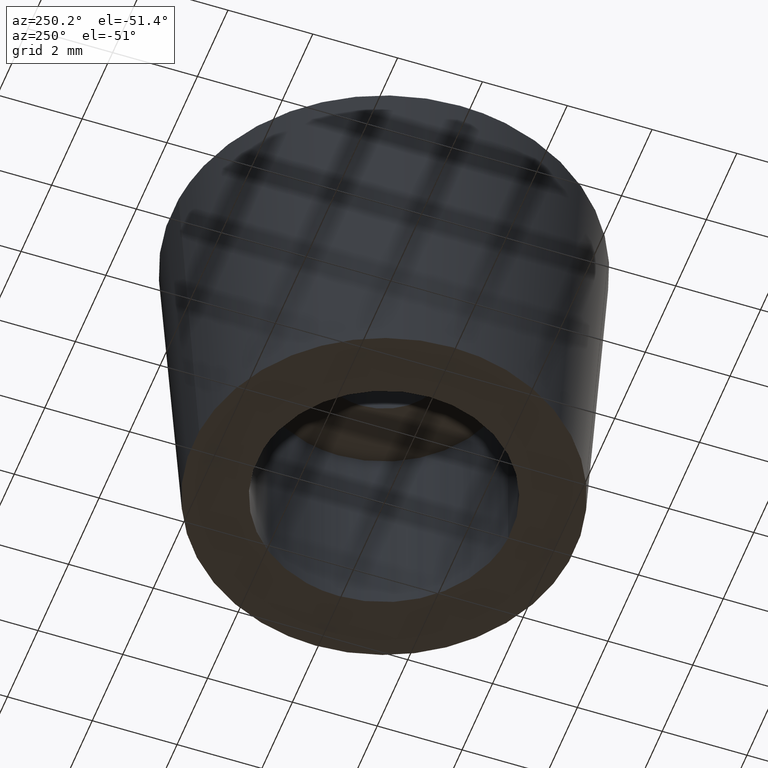
[diagram: clean part render]
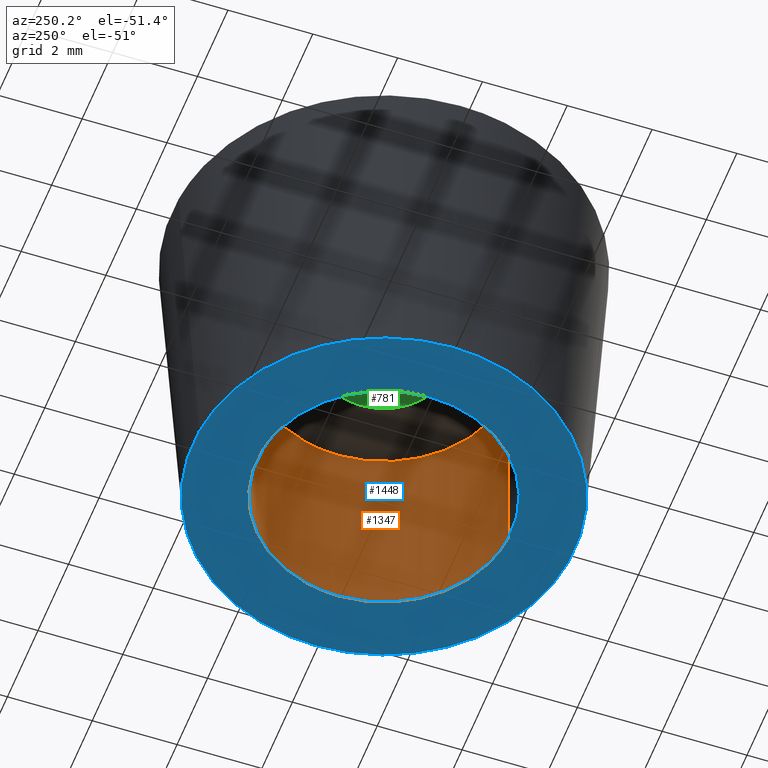
[diagram: same view with three faces highlighted in distinct colors, each labeled with its STEP entity id]
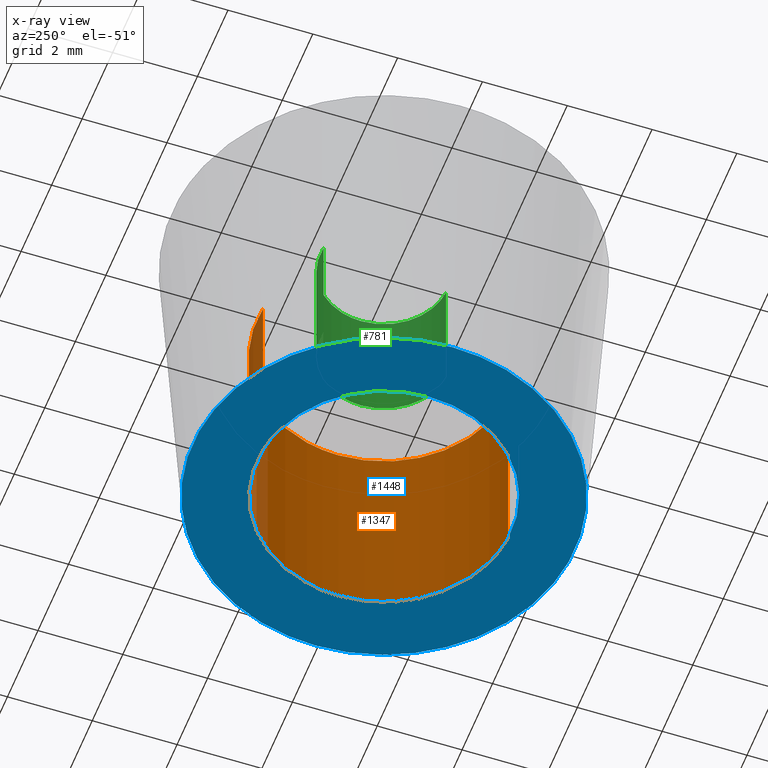
[diagram: x-ray of the same camera — body ghosted, the three highlighted faces saturated]
A machine part, auxiliary view with three faces highlighted in distinct colors.
The next image is the same camera in x-ray (body ghosted, the three faces saturated) — at least one of them is partly hidden behind the body in this view.
Their STEP definitions:

[orange] entity #1347 — the highlighted face is a freeform B-spline surface patch.
#1245=CARTESIAN_POINT('',(-0.354102703970275,2.979028579091000,5.125000000000002));
#1246=CARTESIAN_POINT('',(-0.268844185913933,2.989162846345817,5.125000000000001));
#1247=CARTESIAN_POINT('',(-0.183145618604571,2.994404395265600,5.125000000000001));
#1248=CARTESIAN_POINT('',(2.811258776661029,3.177550013870171,5.125000000000001));
#1249=CARTESIAN_POINT('',(2.994404395265600,0.183145618604571,5.125000000000001));
#1250=CARTESIAN_POINT('',(3.177550013870171,-2.811258776661029,5.125000000000001));
#1251=CARTESIAN_POINT('',(0.183145618604571,-2.994404395265600,5.125000000000001));
#1252=CARTESIAN_POINT('',(-0.354102703970275,2.979028579091000,-0.128125000000000));
#1253=CARTESIAN_POINT('',(-0.268844185913933,2.989162846345817,-0.128125000000000));
#1254=CARTESIAN_POINT('',(-0.183145618604571,2.994404395265600,-0.128125000000000));
#1255=CARTESIAN_POINT('',(2.811258776661029,3.177550013870171,-0.128125000000000));
#1256=CARTESIAN_POINT('',(2.994404395265600,0.183145618604571,-0.128125000000000));
#1257=CARTESIAN_POINT('',(3.177550013870171,-2.811258776661029,-0.128125000000000));
#1258=CARTESIAN_POINT('',(0.183145618604571,-2.994404395265600,-0.128125000000000));
#1266=(BOUNDED_SURFACE()B_SPLINE_SURFACE(2,1,((#1245,#1252),(#1246,#1253),(#1247,#1254),(#1248,#1255),(#1249,#1256),(#1250,#1257),(#1251,#1258)),.UNSPECIFIED.,.F.,.F.,.U.)B_SPLINE_SURFACE_WITH_KNOTS((3,2,2,3),(2,2),(0.0,0.198822509939086,5.169385258416225,10.139948006893370),(0.0,5.253125000000002),.UNSPECIFIED.)GEOMETRIC_REPRESENTATION_ITEM()RATIONAL_B_SPLINE_SURFACE(((0.977505800795127,0.977505800795127),(0.988284271247462,0.988284271247462),(1.0,1.0),(0.707106781186548,0.707106781186548),(1.0,1.0),(0.707106781186548,0.707106781186548),(1.0,1.0)))REPRESENTATION_ITEM('')SURFACE());
#1267=CARTESIAN_POINT('',(-0.354099495451284,2.979028960468613,-5.969898E-015));
#1268=VERTEX_POINT('',#1267);
#1269=CARTESIAN_POINT('',(3.0,0.0,0.0));
#1270=VERTEX_POINT('',#1269);
#1271=CARTESIAN_POINT('',(-0.354099495451284,2.979028960468613,-5.969898E-015));
#1272=CARTESIAN_POINT('',(-0.177670737736467,3.0,0.0));
#1273=CARTESIAN_POINT('',(0.0,3.0,0.0));
#1274=CARTESIAN_POINT('',(3.0,3.0,0.0));
#1275=CARTESIAN_POINT('',(3.0,0.0,0.0));
#1283=(BOUNDED_CURVE()B_SPLINE_CURVE(2,(#1271,#1272,#1273,#1274,#1275),.UNSPECIFIED.,.F.,.U.)B_SPLINE_CURVE_WITH_KNOTS((3,2,3),(0.229562655538124,0.250000000000000,0.500000000000000),.UNSPECIFIED.)CURVE()GEOMETRIC_REPRESENTATION_ITEM()RATIONAL_B_SPLINE_CURVE((0.956027110959706,0.976056161586248,1.0,0.707106781186548,1.0))REPRESENTATION_ITEM(''));
#1284=EDGE_CURVE('',#1268,#1270,#1283,.T.);
#1285=ORIENTED_EDGE('',*,*,#1284,.T.);
#1286=CARTESIAN_POINT('',(0.183142456747576,-2.994404588649708,-6.543377E-015));
#1287=VERTEX_POINT('',#1286);
#1288=CARTESIAN_POINT('',(3.0,0.0,0.0));
#1289=CARTESIAN_POINT('',(2.999999999999999,-2.822121186223181,0.0));
#1290=CARTESIAN_POINT('',(0.183142456747576,-2.994404588649708,-6.543377E-015));
#1298=(BOUNDED_CURVE()B_SPLINE_CURVE(2,(#1288,#1289,#1290),.UNSPECIFIED.,.F.,.U.)B_SPLINE_CURVE_WITH_KNOTS((3,3),(0.500000000000000,0.739333144437917),.UNSPECIFIED.)CURVE()GEOMETRIC_REPRESENTATION_ITEM()RATIONAL_B_SPLINE_CURVE((1.0,0.719603779827335,0.976072432154112))REPRESENTATION_ITEM(''));
#1299=EDGE_CURVE('',#1270,#1287,#1298,.T.);
#1300=ORIENTED_EDGE('',*,*,#1299,.T.);
#1301=CARTESIAN_POINT('',(0.183142495778265,-2.994404586262570,4.999999999999999));
#1302=VERTEX_POINT('',#1301);
#1303=CARTESIAN_POINT('',(0.183142495778265,-2.994404586262570,4.999999999999999));
#1304=CARTESIAN_POINT('',(0.183142456747576,-2.994404588649708,-6.543377E-015));
#1305=QUASI_UNIFORM_CURVE('',1,(#1303,#1304),.UNSPECIFIED.,.F.,.U.);
#1306=EDGE_CURVE('',#1302,#1287,#1305,.T.);
#1307=ORIENTED_EDGE('',*,*,#1306,.F.);
#1308=CARTESIAN_POINT('',(3.0,0.0,5.0));
#1309=VERTEX_POINT('',#1308);
#1310=CARTESIAN_POINT('',(3.0,0.0,5.0));
#1311=CARTESIAN_POINT('',(3.000000000000001,-2.822121149369394,5.0));
#1312=CARTESIAN_POINT('',(0.183142495778265,-2.994404586262570,4.999999999999999));
#1320=(BOUNDED_CURVE()B_SPLINE_CURVE(2,(#1310,#1311,#1312),.UNSPECIFIED.,.F.,.U.)B_SPLINE_CURVE_WITH_KNOTS((3,3),(0.500000000000000,0.739333142188848),.UNSPECIFIED.)CURVE()GEOMETRIC_REPRESENTATION_ITEM()RATIONAL_B_SPLINE_CURVE((1.0,0.719603782462283,0.976072427333922))REPRESENTATION_ITEM(''));
#1321=EDGE_CURVE('',#1309,#1302,#1320,.T.);
#1322=ORIENTED_EDGE('',*,*,#1321,.F.);
#1323=CARTESIAN_POINT('',(-0.354099535051968,2.979028955761558,5.0));
#1324=VERTEX_POINT('',#1323);
#1325=CARTESIAN_POINT('',(-0.354099535051968,2.979028955761558,5.0));
#1326=CARTESIAN_POINT('',(-0.177670757746130,3.0,5.0));
#1327=CARTESIAN_POINT('',(0.0,3.0,5.0));
#1328=CARTESIAN_POINT('',(3.0,3.0,5.000000000000001));
#1329=CARTESIAN_POINT('',(3.0,0.0,5.0));
#1337=(BOUNDED_CURVE()B_SPLINE_CURVE(2,(#1325,#1326,#1327,#1328,#1329),.UNSPECIFIED.,.F.,.U.)B_SPLINE_CURVE_WITH_KNOTS((3,2,3),(0.229562653291538,0.250000000000000,0.500000000000000),.UNSPECIFIED.)CURVE()GEOMETRIC_REPRESENTATION_ITEM()RATIONAL_B_SPLINE_CURVE((0.956027106556297,0.976056158954208,1.0,0.707106781186548,1.0))REPRESENTATION_ITEM(''));
#1338=EDGE_CURVE('',#1324,#1309,#1337,.T.);
#1339=ORIENTED_EDGE('',*,*,#1338,.F.);
#1340=CARTESIAN_POINT('',(-0.354099535051968,2.979028955761558,5.0));
#1341=CARTESIAN_POINT('',(-0.354099495451284,2.979028960468613,-5.969898E-015));
#1342=QUASI_UNIFORM_CURVE('',1,(#1340,#1341),.UNSPECIFIED.,.F.,.U.);
#1343=EDGE_CURVE('',#1324,#1268,#1342,.T.);
#1344=ORIENTED_EDGE('',*,*,#1343,.T.);
#1345=EDGE_LOOP('',(#1285,#1300,#1307,#1322,#1339,#1344));
#1346=FACE_OUTER_BOUND('',#1345,.T.);
#1347=ADVANCED_FACE('',(#1346),#1266,.F.);

[blue] entity #1448 — the highlighted face is a freeform B-spline surface patch.
#515=CARTESIAN_POINT('',(-4.500000000000000,0.0,0.0));
#516=VERTEX_POINT('',#515);
#517=CARTESIAN_POINT('',(-0.353062357360180,4.486128245514117,-0.000000598405103));
#518=VERTEX_POINT('',#517);
#519=CARTESIAN_POINT('',(-4.500000000000000,0.0,0.0));
#520=CARTESIAN_POINT('',(-4.500000000000000,4.159760533424683,0.0));
#521=CARTESIAN_POINT('',(-0.353062357360180,4.486128245514117,-0.000000598405103));
#529=(BOUNDED_CURVE()B_SPLINE_CURVE(2,(#519,#520,#521),.UNSPECIFIED.,.F.,.U.)B_SPLINE_CURVE_WITH_KNOTS((3,3),(0.0,0.236331437068440),.UNSPECIFIED.)CURVE()GEOMETRIC_REPRESENTATION_ITEM()RATIONAL_B_SPLINE_CURVE((1.0,0.723120498760862,0.969723640902832))REPRESENTATION_ITEM(''));
#530=EDGE_CURVE('',#516,#518,#529,.T.);
#532=CARTESIAN_POINT('',(0.353062357360179,-4.486128245514117,-0.000000598405103));
#533=VERTEX_POINT('',#532);
#534=CARTESIAN_POINT('',(0.353062357360179,-4.486128245514117,-0.000000598405103));
#535=CARTESIAN_POINT('',(0.176803688009538,-4.500000000000000,0.0));
#536=CARTESIAN_POINT('',(0.0,-4.500000000000000,0.0));
#537=CARTESIAN_POINT('',(-4.500000000000000,-4.500000000000000,0.0));
#538=CARTESIAN_POINT('',(-4.500000000000000,0.0,0.0));
#546=(BOUNDED_CURVE()B_SPLINE_CURVE(2,(#534,#535,#536,#537,#538),.UNSPECIFIED.,.F.,.U.)B_SPLINE_CURVE_WITH_KNOTS((3,2,3),(0.736331437068440,0.750000000000000,1.0),.UNSPECIFIED.)CURVE()GEOMETRIC_REPRESENTATION_ITEM()RATIONAL_B_SPLINE_CURVE((0.969723640902832,0.983986282425685,1.0,0.707106781186547,1.0))REPRESENTATION_ITEM(''));
#547=EDGE_CURVE('',#533,#516,#546,.T.);
#614=CARTESIAN_POINT('',(4.500000000000000,0.0,0.0));
#615=VERTEX_POINT('',#614);
#616=CARTESIAN_POINT('',(-0.353062357360180,4.486128245514117,-0.000000598405103));
#617=CARTESIAN_POINT('',(-0.176803688009538,4.500000000000000,0.0));
#618=CARTESIAN_POINT('',(0.0,4.500000000000000,0.0));
#619=CARTESIAN_POINT('',(4.500000000000000,4.500000000000000,0.0));
#620=CARTESIAN_POINT('',(4.500000000000000,0.0,0.0));
#628=(BOUNDED_CURVE()B_SPLINE_CURVE(2,(#616,#617,#618,#619,#620),.UNSPECIFIED.,.F.,.U.)B_SPLINE_CURVE_WITH_KNOTS((3,2,3),(0.236331437068440,0.250000000000000,0.500000000000000),.UNSPECIFIED.)CURVE()GEOMETRIC_REPRESENTATION_ITEM()RATIONAL_B_SPLINE_CURVE((0.969723640902832,0.983986282425685,1.0,0.707106781186547,1.0))REPRESENTATION_ITEM(''));
#629=EDGE_CURVE('',#518,#615,#628,.T.);
#663=CARTESIAN_POINT('',(4.500000000000000,0.0,0.0));
#664=CARTESIAN_POINT('',(4.500000000000000,-4.159760533424683,0.0));
#665=CARTESIAN_POINT('',(0.353062357360179,-4.486128245514117,-0.000000598405103));
#673=(BOUNDED_CURVE()B_SPLINE_CURVE(2,(#663,#664,#665),.UNSPECIFIED.,.F.,.U.)B_SPLINE_CURVE_WITH_KNOTS((3,3),(0.500000000000000,0.736331437068440),.UNSPECIFIED.)CURVE()GEOMETRIC_REPRESENTATION_ITEM()RATIONAL_B_SPLINE_CURVE((1.0,0.723120498760862,0.969723640902832))REPRESENTATION_ITEM(''));
#674=EDGE_CURVE('',#615,#533,#673,.T.);
#1267=CARTESIAN_POINT('',(-0.354099495451284,2.979028960468613,-5.969898E-015));
#1268=VERTEX_POINT('',#1267);
#1269=CARTESIAN_POINT('',(3.0,0.0,0.0));
#1270=VERTEX_POINT('',#1269);
#1271=CARTESIAN_POINT('',(-0.354099495451284,2.979028960468613,-5.969898E-015));
#1272=CARTESIAN_POINT('',(-0.177670737736467,3.0,0.0));
#1273=CARTESIAN_POINT('',(0.0,3.0,0.0));
#1274=CARTESIAN_POINT('',(3.0,3.0,0.0));
#1275=CARTESIAN_POINT('',(3.0,0.0,0.0));
#1283=(BOUNDED_CURVE()B_SPLINE_CURVE(2,(#1271,#1272,#1273,#1274,#1275),.UNSPECIFIED.,.F.,.U.)B_SPLINE_CURVE_WITH_KNOTS((3,2,3),(0.229562655538124,0.250000000000000,0.500000000000000),.UNSPECIFIED.)CURVE()GEOMETRIC_REPRESENTATION_ITEM()RATIONAL_B_SPLINE_CURVE((0.956027110959706,0.976056161586248,1.0,0.707106781186548,1.0))REPRESENTATION_ITEM(''));
#1284=EDGE_CURVE('',#1268,#1270,#1283,.T.);
#1286=CARTESIAN_POINT('',(0.183142456747576,-2.994404588649708,-6.543377E-015));
#1287=VERTEX_POINT('',#1286);
#1288=CARTESIAN_POINT('',(3.0,0.0,0.0));
#1289=CARTESIAN_POINT('',(2.999999999999999,-2.822121186223181,0.0));
#1290=CARTESIAN_POINT('',(0.183142456747576,-2.994404588649708,-6.543377E-015));
#1298=(BOUNDED_CURVE()B_SPLINE_CURVE(2,(#1288,#1289,#1290),.UNSPECIFIED.,.F.,.U.)B_SPLINE_CURVE_WITH_KNOTS((3,3),(0.500000000000000,0.739333144437917),.UNSPECIFIED.)CURVE()GEOMETRIC_REPRESENTATION_ITEM()RATIONAL_B_SPLINE_CURVE((1.0,0.719603779827335,0.976072432154112))REPRESENTATION_ITEM(''));
#1299=EDGE_CURVE('',#1270,#1287,#1298,.T.);
#1366=CARTESIAN_POINT('',(-3.0,0.0,0.0));
#1367=VERTEX_POINT('',#1366);
#1368=CARTESIAN_POINT('',(-3.0,0.0,0.0));
#1369=CARTESIAN_POINT('',(-3.000000000000000,2.664526467843501,0.0));
#1370=CARTESIAN_POINT('',(-0.354099495451284,2.979028960468613,-5.969898E-015));
#1378=(BOUNDED_CURVE()B_SPLINE_CURVE(2,(#1368,#1369,#1370),.UNSPECIFIED.,.F.,.U.)B_SPLINE_CURVE_WITH_KNOTS((3,3),(0.0,0.229562655538124),.UNSPECIFIED.)CURVE()GEOMETRIC_REPRESENTATION_ITEM()RATIONAL_B_SPLINE_CURVE((1.0,0.731050619600300,0.956027110959706))REPRESENTATION_ITEM(''));
#1379=EDGE_CURVE('',#1367,#1268,#1378,.T.);
#1413=CARTESIAN_POINT('',(0.183142456747576,-2.994404588649708,-6.543377E-015));
#1414=CARTESIAN_POINT('',(0.091656704534628,-3.000000000000001,0.0));
#1415=CARTESIAN_POINT('',(0.0,-3.0,0.0));
#1416=CARTESIAN_POINT('',(-3.0,-3.0,0.0));
#1417=CARTESIAN_POINT('',(-3.0,0.0,0.0));
#1425=(BOUNDED_CURVE()B_SPLINE_CURVE(2,(#1413,#1414,#1415,#1416,#1417),.UNSPECIFIED.,.F.,.U.)B_SPLINE_CURVE_WITH_KNOTS((3,2,3),(0.739333144437917,0.750000000000000,1.0),.UNSPECIFIED.)CURVE()GEOMETRIC_REPRESENTATION_ITEM()RATIONAL_B_SPLINE_CURVE((0.976072432154112,0.987503001359213,1.0,0.707106781186548,1.0))REPRESENTATION_ITEM(''));
#1426=EDGE_CURVE('',#1287,#1367,#1425,.T.);
#1431=CARTESIAN_POINT('',(-4.949549982556253,-4.948176387270838,0.0));
#1432=CARTESIAN_POINT('',(4.949550223955065,-4.948176387270838,0.0));
#1433=CARTESIAN_POINT('',(-4.949549982556253,4.948176628669650,0.0));
#1434=CARTESIAN_POINT('',(4.949550223955065,4.948176628669650,0.0));
#1435=B_SPLINE_SURFACE_WITH_KNOTS('',1,1,((#1431,#1433),(#1432,#1434)),.UNSPECIFIED.,.F.,.F.,.U.,(2,2),(2,2),(0.0,9.899100206511317),(0.0,9.896353015940488),.UNSPECIFIED.);
#1436=ORIENTED_EDGE('',*,*,#530,.T.);
#1437=ORIENTED_EDGE('',*,*,#629,.T.);
#1438=ORIENTED_EDGE('',*,*,#674,.T.);
#1439=ORIENTED_EDGE('',*,*,#547,.T.);
#1440=EDGE_LOOP('',(#1436,#1437,#1438,#1439));
#1441=FACE_OUTER_BOUND('',#1440,.T.);
#1442=ORIENTED_EDGE('',*,*,#1299,.F.);
#1443=ORIENTED_EDGE('',*,*,#1284,.F.);
#1444=ORIENTED_EDGE('',*,*,#1379,.F.);
#1445=ORIENTED_EDGE('',*,*,#1426,.F.);
#1446=EDGE_LOOP('',(#1442,#1443,#1444,#1445));
#1447=FACE_BOUND('',#1446,.T.);
#1448=ADVANCED_FACE('',(#1441,#1447),#1435,.F.);

[green] entity #781 — the highlighted face is a freeform B-spline surface patch.
#679=CARTESIAN_POINT('',(-0.177051351985138,1.489514289545500,8.074999999999999));
#680=CARTESIAN_POINT('',(-0.134422092956966,1.494581423172908,8.074999999999999));
#681=CARTESIAN_POINT('',(-0.091572809302285,1.497202197632800,8.074999999999999));
#682=CARTESIAN_POINT('',(1.405629388330515,1.588775006935085,8.075000000000001));
#683=CARTESIAN_POINT('',(1.497202197632800,0.091572809302285,8.074999999999999));
#684=CARTESIAN_POINT('',(1.588775006935085,-1.405629388330515,8.075000000000001));
#685=CARTESIAN_POINT('',(0.091572809302285,-1.497202197632800,8.074999999999999));
#686=CARTESIAN_POINT('',(-0.177051351985138,1.489514289545500,4.923125000000000));
#687=CARTESIAN_POINT('',(-0.134422092956966,1.494581423172908,4.923124999999999));
#688=CARTESIAN_POINT('',(-0.091572809302285,1.497202197632800,4.923124999999999));
#689=CARTESIAN_POINT('',(1.405629388330515,1.588775006935085,4.923124999999998));
#690=CARTESIAN_POINT('',(1.497202197632800,0.091572809302285,4.923124999999999));
#691=CARTESIAN_POINT('',(1.588775006935085,-1.405629388330515,4.923124999999998));
#692=CARTESIAN_POINT('',(0.091572809302285,-1.497202197632800,4.923124999999999));
#700=(BOUNDED_SURFACE()B_SPLINE_SURFACE(2,1,((#679,#686),(#680,#687),(#681,#688),(#682,#689),(#683,#690),(#684,#691),(#685,#692)),.UNSPECIFIED.,.F.,.F.,.U.)B_SPLINE_SURFACE_WITH_KNOTS((3,2,2,3),(2,2),(3.078760800517997,3.141592653589793,4.712388980384690,6.283185307179586),(0.0,3.151875000000002),.UNSPECIFIED.)GEOMETRIC_REPRESENTATION_ITEM()RATIONAL_B_SPLINE_SURFACE(((0.977505800795127,0.977505800795127),(0.988284271247462,0.988284271247462),(1.0,1.0),(0.707106781186548,0.707106781186548),(1.0,1.0),(0.707106781186548,0.707106781186548),(1.0,1.0)))REPRESENTATION_ITEM('')SURFACE());
#701=CARTESIAN_POINT('',(-0.177049095385547,1.489514557773100,8.000000000000014));
#702=VERTEX_POINT('',#701);
#703=CARTESIAN_POINT('',(1.500000000000000,0.0,8.0));
#704=VERTEX_POINT('',#703);
#705=CARTESIAN_POINT('',(-0.177049095385547,1.489514557773101,8.000000000000014));
#706=CARTESIAN_POINT('',(-0.088835039250085,1.500000000000000,8.0));
#707=CARTESIAN_POINT('',(0.0,1.500000000000000,8.0));
#708=CARTESIAN_POINT('',(1.500000000000000,1.500000000000000,8.0));
#709=CARTESIAN_POINT('',(1.500000000000000,0.0,8.0));
#717=(BOUNDED_CURVE()B_SPLINE_CURVE(2,(#705,#706,#707,#708,#709),.UNSPECIFIED.,.F.,.U.)B_SPLINE_CURVE_WITH_KNOTS((3,2,3),(0.229562729553938,0.250000000000000,0.500000000000000),.UNSPECIFIED.)CURVE()GEOMETRIC_REPRESENTATION_ITEM()RATIONAL_B_SPLINE_CURVE((0.956027256034033,0.976056248301167,1.0,0.707106781186548,1.0))REPRESENTATION_ITEM(''));
#718=EDGE_CURVE('',#702,#704,#717,.T.);
#719=ORIENTED_EDGE('',*,*,#718,.F.);
#720=CARTESIAN_POINT('',(-0.177049122601509,1.489514554538154,5.0));
#721=VERTEX_POINT('',#720);
#722=CARTESIAN_POINT('',(-0.177049095385547,1.489514557773100,8.000000000000014));
#723=CARTESIAN_POINT('',(-0.177049122601509,1.489514554538154,5.0));
#724=QUASI_UNIFORM_CURVE('',1,(#722,#723),.UNSPECIFIED.,.F.,.U.);
#725=EDGE_CURVE('',#702,#721,#724,.T.);
#726=ORIENTED_EDGE('',*,*,#725,.T.);
#727=CARTESIAN_POINT('',(1.500000000000000,0.0,5.0));
#728=VERTEX_POINT('',#727);
#729=CARTESIAN_POINT('',(-0.177049122601509,1.489514554538154,5.0));
#730=CARTESIAN_POINT('',(-0.088835053001922,1.500000000000000,5.0));
#731=CARTESIAN_POINT('',(0.0,1.500000000000000,5.0));
#732=CARTESIAN_POINT('',(1.500000000000000,1.500000000000000,5.000000000000001));
#733=CARTESIAN_POINT('',(1.500000000000000,0.0,5.0));
#741=(BOUNDED_CURVE()B_SPLINE_CURVE(2,(#729,#730,#731,#732,#733),.UNSPECIFIED.,.F.,.U.)B_SPLINE_CURVE_WITH_KNOTS((3,2,3),(0.229562726465960,0.250000000000000,0.500000000000000),.UNSPECIFIED.)CURVE()GEOMETRIC_REPRESENTATION_ITEM()RATIONAL_B_SPLINE_CURVE((0.956027249981456,0.976056244683376,1.0,0.707106781186548,1.0))REPRESENTATION_ITEM(''));
#742=EDGE_CURVE('',#721,#728,#741,.T.);
#743=ORIENTED_EDGE('',*,*,#742,.T.);
#744=CARTESIAN_POINT('',(0.091570935345200,-1.497202312246571,5.0));
#745=VERTEX_POINT('',#744);
#746=CARTESIAN_POINT('',(1.500000000000000,0.0,5.0));
#747=CARTESIAN_POINT('',(1.500000000000000,-1.411060869796808,4.999999999999999));
#748=CARTESIAN_POINT('',(0.091570935345200,-1.497202312246571,5.0));
#756=(BOUNDED_CURVE()B_SPLINE_CURVE(2,(#746,#747,#748),.UNSPECIFIED.,.F.,.U.)B_SPLINE_CURVE_WITH_KNOTS((3,3),(0.500000000000000,0.739333178208343),.UNSPECIFIED.)CURVE()GEOMETRIC_REPRESENTATION_ITEM()RATIONAL_B_SPLINE_CURVE((1.0,0.719603740262819,0.976072504530692))REPRESENTATION_ITEM(''));
#757=EDGE_CURVE('',#728,#745,#756,.T.);
#758=ORIENTED_EDGE('',*,*,#757,.T.);
#759=CARTESIAN_POINT('',(0.091570912522021,-1.497202313642439,7.999999999999989));
#760=VERTEX_POINT('',#759);
#761=CARTESIAN_POINT('',(0.091570912522021,-1.497202313642439,7.999999999999989));
#762=CARTESIAN_POINT('',(0.091570935345200,-1.497202312246571,5.0));
#763=QUASI_UNIFORM_CURVE('',1,(#761,#762),.UNSPECIFIED.,.F.,.U.);
#764=EDGE_CURVE('',#760,#745,#763,.T.);
#765=ORIENTED_EDGE('',*,*,#764,.F.);
#766=CARTESIAN_POINT('',(1.500000000000000,0.0,8.0));
#767=CARTESIAN_POINT('',(1.500000000000000,-1.411060891347048,8.0));
#768=CARTESIAN_POINT('',(0.091570912522021,-1.497202313642440,7.999999999999989));
#776=(BOUNDED_CURVE()B_SPLINE_CURVE(2,(#766,#767,#768),.UNSPECIFIED.,.F.,.U.)B_SPLINE_CURVE_WITH_KNOTS((3,3),(0.500000000000000,0.739333180838628),.UNSPECIFIED.)CURVE()GEOMETRIC_REPRESENTATION_ITEM()RATIONAL_B_SPLINE_CURVE((1.0,0.719603737181249,0.976072510167902))REPRESENTATION_ITEM(''));
#777=EDGE_CURVE('',#704,#760,#776,.T.);
#778=ORIENTED_EDGE('',*,*,#777,.F.);
#779=EDGE_LOOP('',(#719,#726,#743,#758,#765,#778));
#780=FACE_OUTER_BOUND('',#779,.T.);
#781=ADVANCED_FACE('',(#780),#700,.F.);